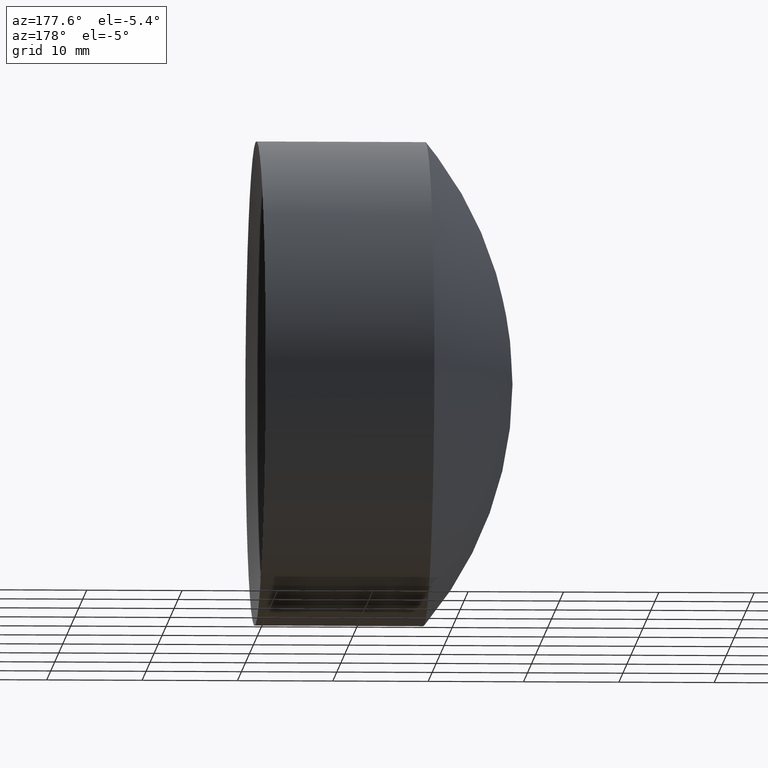
[diagram: clean part render]
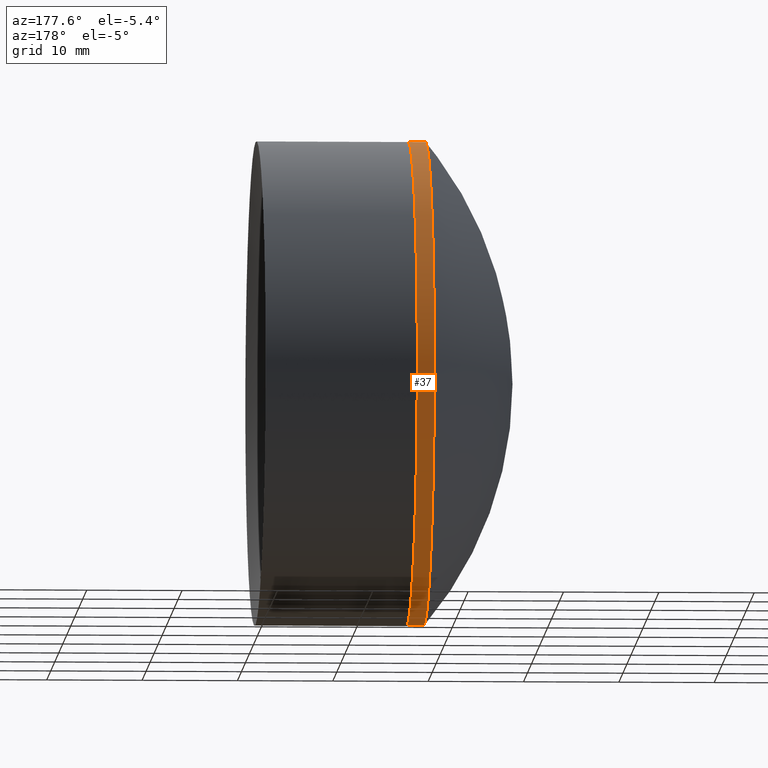
[diagram: same view with one face highlighted and labeled with its STEP entity id]
A machine part, auxiliary view. The second image highlights one B-rep face of the part: STEP entity #37.
In plain terms, the highlighted cylindrical surface (partial cylindrical patch) has radius 25.4 mm, axis along (-1, -0, -0).
Its self-contained STEP definition (entity closure, byte-faithful):
#5 = DIRECTION ( 'NONE',  ( 0.0000000000000000000, 0.0000000000000000000, 1.000000000000000000 ) ) ;
#23 = EDGE_CURVE ( 'NONE', #100, #292, #134, .T. ) ;
#29 = CARTESIAN_POINT ( 'NONE',  ( 104.2995427577912200, 3.110602869834277700E-015, -25.40000000000000600 ) ) ;
#30 = ORIENTED_EDGE ( 'NONE', *, *, #187, .T. ) ;
#31 = DIRECTION ( 'NONE',  ( -1.000000000000000000, -0.0000000000000000000, -0.0000000000000000000 ) ) ;
#37 = ADVANCED_FACE ( 'NONE', ( #208 ), #123, .T. ) ;
#43 = CARTESIAN_POINT ( 'NONE',  ( 104.2995427577912200, 0.0000000000000000000, 0.0000000000000000000 ) ) ;
#46 = AXIS2_PLACEMENT_3D ( 'NONE', #340, #295, #111 ) ;
#48 = DIRECTION ( 'NONE',  ( 0.0000000000000000000, 0.0000000000000000000, 1.000000000000000000 ) ) ;
#53 = LINE ( 'NONE', #246, #265 ) ;
#70 = CARTESIAN_POINT ( 'NONE',  ( 102.5051092158878300, 0.0000000000000000000, 25.40000000000000600 ) ) ;
#71 = EDGE_CURVE ( 'NONE', #82, #342, #53, .T. ) ;
#82 = VERTEX_POINT ( 'NONE', #29 ) ;
#86 = CIRCLE ( 'NONE', #239, 25.40000000000000600 ) ;
#98 = AXIS2_PLACEMENT_3D ( 'NONE', #144, #225, #48 ) ;
#100 = VERTEX_POINT ( 'NONE', #317 ) ;
#111 = DIRECTION ( 'NONE',  ( 0.0000000000000000000, 0.0000000000000000000, 1.000000000000000000 ) ) ;
#120 = CIRCLE ( 'NONE', #98, 25.40000000000000600 ) ;
#123 = CYLINDRICAL_SURFACE ( 'NONE', #46, 25.40000000000000600 ) ;
#134 = LINE ( 'NONE', #221, #271 ) ;
#144 = CARTESIAN_POINT ( 'NONE',  ( 102.5051092158878300, 0.0000000000000000000, 0.0000000000000000000 ) ) ;
#178 = DIRECTION ( 'NONE',  ( -1.000000000000000000, -0.0000000000000000000, -0.0000000000000000000 ) ) ;
#182 = EDGE_LOOP ( 'NONE', ( #30, #307, #329, #316 ) ) ;
#187 = EDGE_CURVE ( 'NONE', #100, #82, #86, .T. ) ;
#208 = FACE_OUTER_BOUND ( 'NONE', #182, .T. ) ;
#221 = CARTESIAN_POINT ( 'NONE',  ( -0.8160621761658039000, 0.0000000000000000000, 25.40000000000000600 ) ) ;
#225 = DIRECTION ( 'NONE',  ( -1.000000000000000000, -0.0000000000000000000, -0.0000000000000000000 ) ) ;
#239 = AXIS2_PLACEMENT_3D ( 'NONE', #43, #178, #5 ) ;
#246 = CARTESIAN_POINT ( 'NONE',  ( -0.8160621761658039000, 3.110602869834277700E-015, -25.40000000000000600 ) ) ;
#264 = EDGE_CURVE ( 'NONE', #292, #342, #120, .T. ) ;
#265 = VECTOR ( 'NONE', #31, 1000.000000000000000 ) ;
#271 = VECTOR ( 'NONE', #320, 1000.000000000000000 ) ;
#287 = CARTESIAN_POINT ( 'NONE',  ( 102.5051092158878300, 3.110602869834277700E-015, -25.40000000000000900 ) ) ;
#292 = VERTEX_POINT ( 'NONE', #70 ) ;
#295 = DIRECTION ( 'NONE',  ( -1.000000000000000000, -0.0000000000000000000, -0.0000000000000000000 ) ) ;
#307 = ORIENTED_EDGE ( 'NONE', *, *, #71, .T. ) ;
#316 = ORIENTED_EDGE ( 'NONE', *, *, #23, .F. ) ;
#317 = CARTESIAN_POINT ( 'NONE',  ( 104.2995427577912200, 0.0000000000000000000, 25.40000000000000600 ) ) ;
#320 = DIRECTION ( 'NONE',  ( -1.000000000000000000, -0.0000000000000000000, -0.0000000000000000000 ) ) ;
#329 = ORIENTED_EDGE ( 'NONE', *, *, #264, .F. ) ;
#340 = CARTESIAN_POINT ( 'NONE',  ( -0.8160621761658039000, 0.0000000000000000000, 0.0000000000000000000 ) ) ;
#342 = VERTEX_POINT ( 'NONE', #287 ) ;